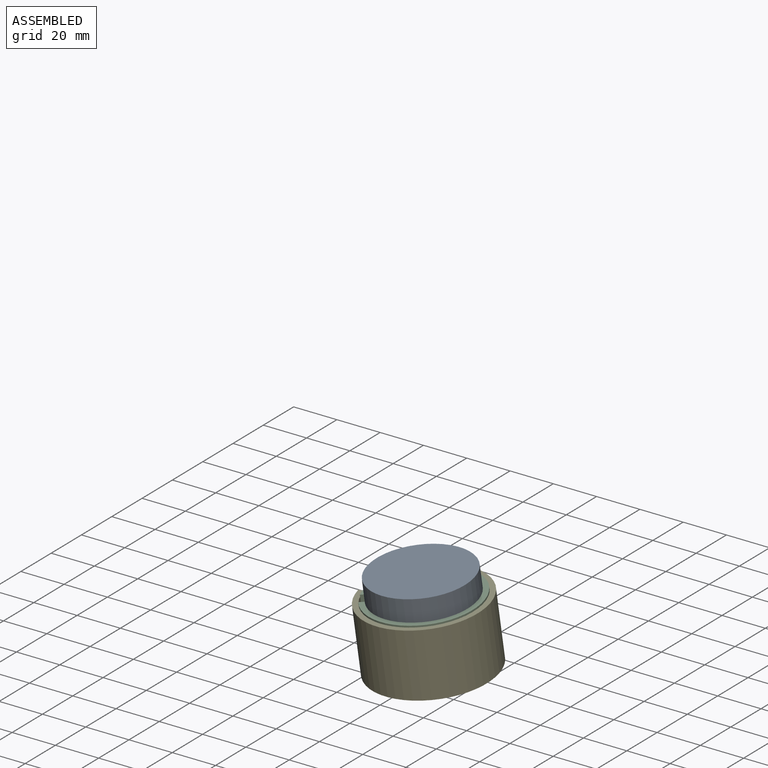
[diagram: assembled view]
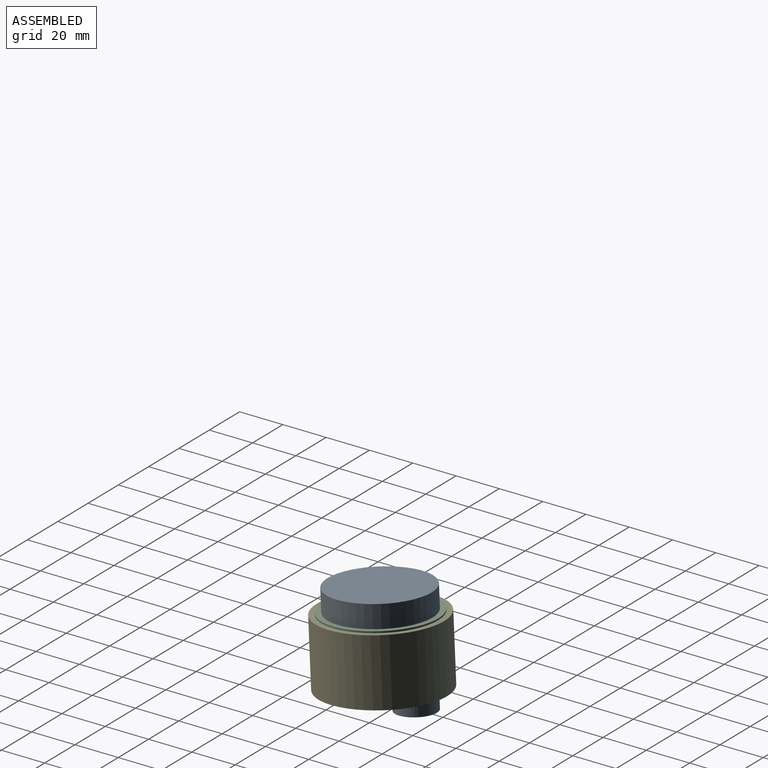
[diagram: assembled view, second angle]
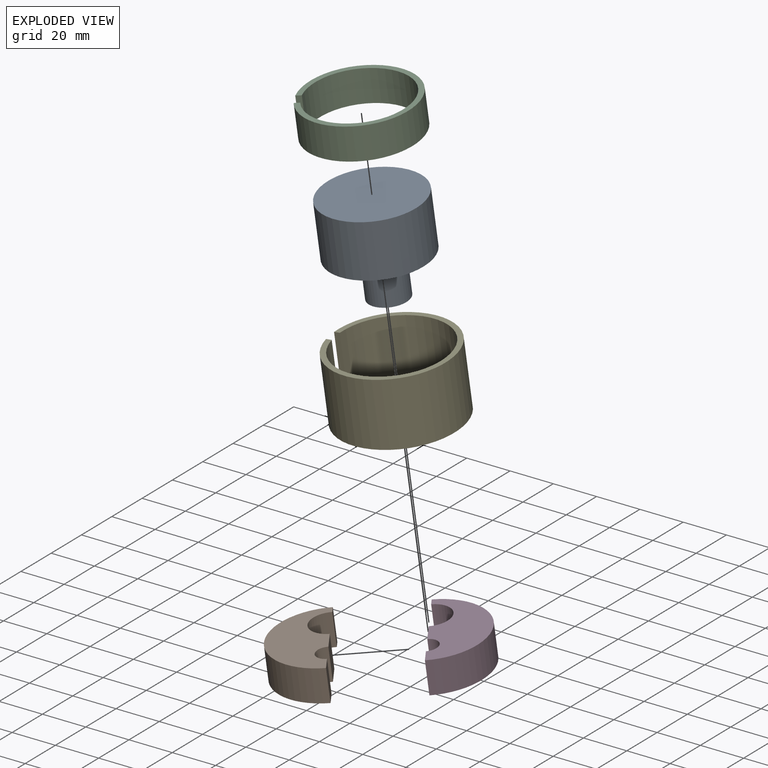
[diagram: exploded view]
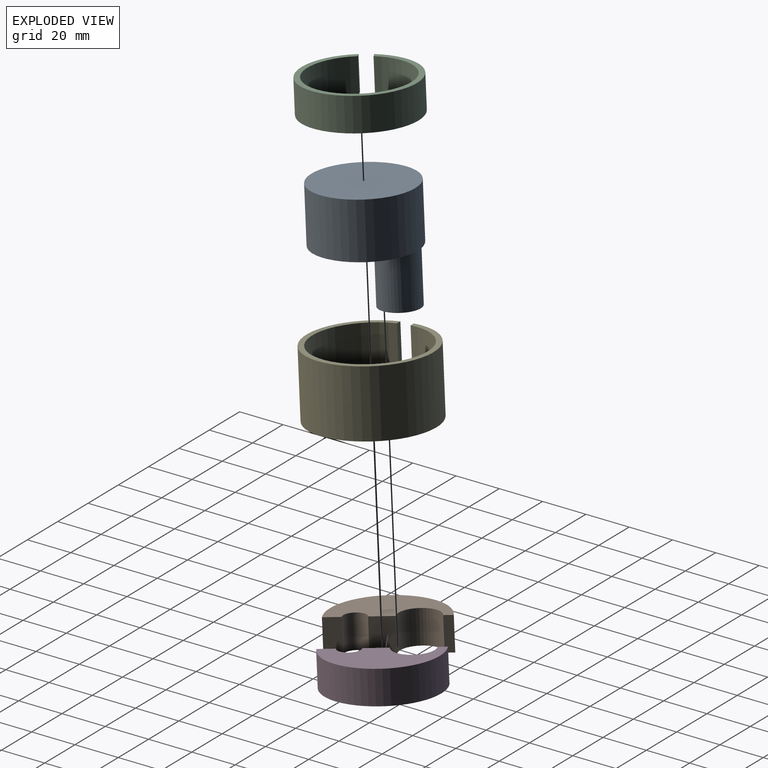
[diagram: exploded view, second angle]
ASSEMBLY  parts=5 mates=9
PART A: 5 faces, bbox 45x45x50 mm
  f0: cylinder r=22.5mm len=45mm, axis (0,0,-1), area 3534.3mm2, adj f1,f2
  f1: plane 45x45mm, normal (0,0,1), area 1590.4mm2, adj f0
  f2: plane 45x45mm, normal (0,0,-1), area 1336mm2, adj f0,f3
  f3: cylinder r=9mm len=25mm, axis (0,0,1), area 1413.7mm2, adj f2,f4
  f4: plane 18x18mm, normal (0,0,-1), area 254.5mm2, adj f3
PART B: 8 faces, bbox 25x50x15 mm
  f0: plane 15x10.5mm, normal (-1,0,0), area 157.5mm2, adj f1,f5,f6,f7
  f1: cylinder r=5mm len=15mm, axis (0,0,1), area 235.6mm2, adj f0,f2,f6,f7
  f2: plane 15x7.5mm, normal (-1,0,0), area 112.5mm2, adj f1,f3,f6,f7
  f3: cylinder r=25mm len=50mm, axis (0,0,1), area 1178.1mm2, adj f2,f4,f6,f7
  f4: plane 15x4mm, normal (-1,0,0), area 60mm2, adj f3,f5,f6,f7
  f5: cylinder r=9mm len=18mm, axis (0,0,1), area 424.1mm2, adj f0,f4,f6,f7
  f6: plane 50x25mm, normal (0,0,-1), area 815.2mm2, adj f0,f1,f2,f3,f4,f5
  f7: plane 50x25mm, normal (0,0,1), area 815.2mm2, adj f0,f1,f2,f3,f4,f5
PART C: 6 faces, bbox 50x49.8x15 mm
  f0: cylinder r=25mm len=50mm, axis (0,0,1), area 2266mm2, adj f1,f3,f4,f5
  f1: plane 15x2.52mm, normal (-1,0,0), area 37.8mm2, adj f0,f2,f4,f5
  f2: cylinder r=22.5mm len=45mm, axis (0,0,1), area 2030.3mm2, adj f1,f3,f4,f5
  f3: plane 15x2.52mm, normal (1,0,0), area 37.8mm2, adj f0,f2,f4,f5
  f4: plane 50x49.82mm, normal (0,0,-1), area 358mm2, adj f0,f1,f2,f3
  f5: plane 50x49.82mm, normal (0,0,1), area 358mm2, adj f0,f1,f2,f3
PART D: 8 faces, bbox 25x50x15 mm
  f0: plane 15x10.5mm, normal (1,0,0), area 157.5mm2, adj f1,f5,f6,f7
  f1: cylinder r=5mm len=15mm, axis (0,0,1), area 235.6mm2, adj f0,f2,f6,f7
  f2: plane 15x7.5mm, normal (1,0,0), area 112.5mm2, adj f1,f3,f6,f7
  f3: cylinder r=25mm len=50mm, axis (0,0,1), area 1178.1mm2, adj f2,f4,f6,f7
  f4: plane 15x4mm, normal (1,0,0), area 60mm2, adj f3,f5,f6,f7
  f5: cylinder r=9mm len=18mm, axis (0,0,1), area 424.1mm2, adj f0,f4,f6,f7
  f6: plane 50x25mm, normal (0,0,-1), area 815.2mm2, adj f0,f1,f2,f3,f4,f5
  f7: plane 50x25mm, normal (0,0,1), area 815.2mm2, adj f0,f1,f2,f3,f4,f5
PART E: 6 faces, bbox 55x54.8x30 mm
  f0: cylinder r=25mm len=50mm, axis (0,0,1), area 4532mm2, adj f1,f3,f4,f5
  f1: plane 30x2.52mm, normal (1,0,0), area 75.5mm2, adj f0,f2,f4,f5
  f2: cylinder r=27.5mm len=55mm, axis (0,0,1), area 5003.3mm2, adj f1,f3,f4,f5
  f3: plane 30x2.52mm, normal (-1,0,0), area 75.5mm2, adj f0,f2,f4,f5
  f4: plane 55x54.84mm, normal (0,0,-1), area 397.3mm2, adj f0,f1,f2,f3
  f5: plane 55x54.84mm, normal (0,0,1), area 397.3mm2, adj f0,f1,f2,f3
PLACE A rot(axis=(0.05,0.04,-1),148.2deg) t=(-10.64,-41.52,40.52)mm
PLACE B rot(axis=(0.05,0.04,-1),148.2deg) t=(-10.64,-41.52,40.52)mm
PLACE C rot(axis=(-0.01,-0.07,1),119.1deg) t=(-10.64,-41.52,40.52)mm
PLACE D rot(axis=(0.05,0.04,-1),148.2deg) t=(-10.64,-41.52,40.52)mm
PLACE E rot(axis=(0.01,-0.08,1),94.4deg) t=(-10.58,-41.45,39.75)mm
MATE parallel D.f0 <-> B.f0  axis (-0.84,-0.52,-0.11) through (-8.91,-42.71,32.98)mm
MATE cylindrical A.f3 <-> B.f5  axis (0.07,0.1,-0.99) through (-15.2,-28.95,16.23)mm
MATE cylindrical C.f2 <-> E.f0  axis (-0.07,-0.1,0.99) through (-11.71,-42.97,55.41)mm
MATE planar B.f3 <-> D.f3  axis (-0.07,-0.1,0.99) through (-10.64,-41.52,40.52)mm
MATE cylindrical D.f3 <-> E.f0  axis (0.07,0.1,-0.99) through (-9.56,-40.08,25.63)mm
MATE cylindrical E.f0 <-> B.f3  axis (-0.07,-0.1,0.99) through (-9.5,-40,24.86)mm
MATE planar D.f3 <-> C.f2  axis (-0.07,-0.1,0.99) through (-10.64,-41.52,40.52)mm
MATE cylindrical A.f0 <-> C.f2  axis (0.07,0.1,-0.99) through (-10.64,-41.52,40.52)mm
MATE planar A.f0 <-> D.f3  axis (0.07,0.1,-0.99) through (-10.64,-41.52,40.52)mm
